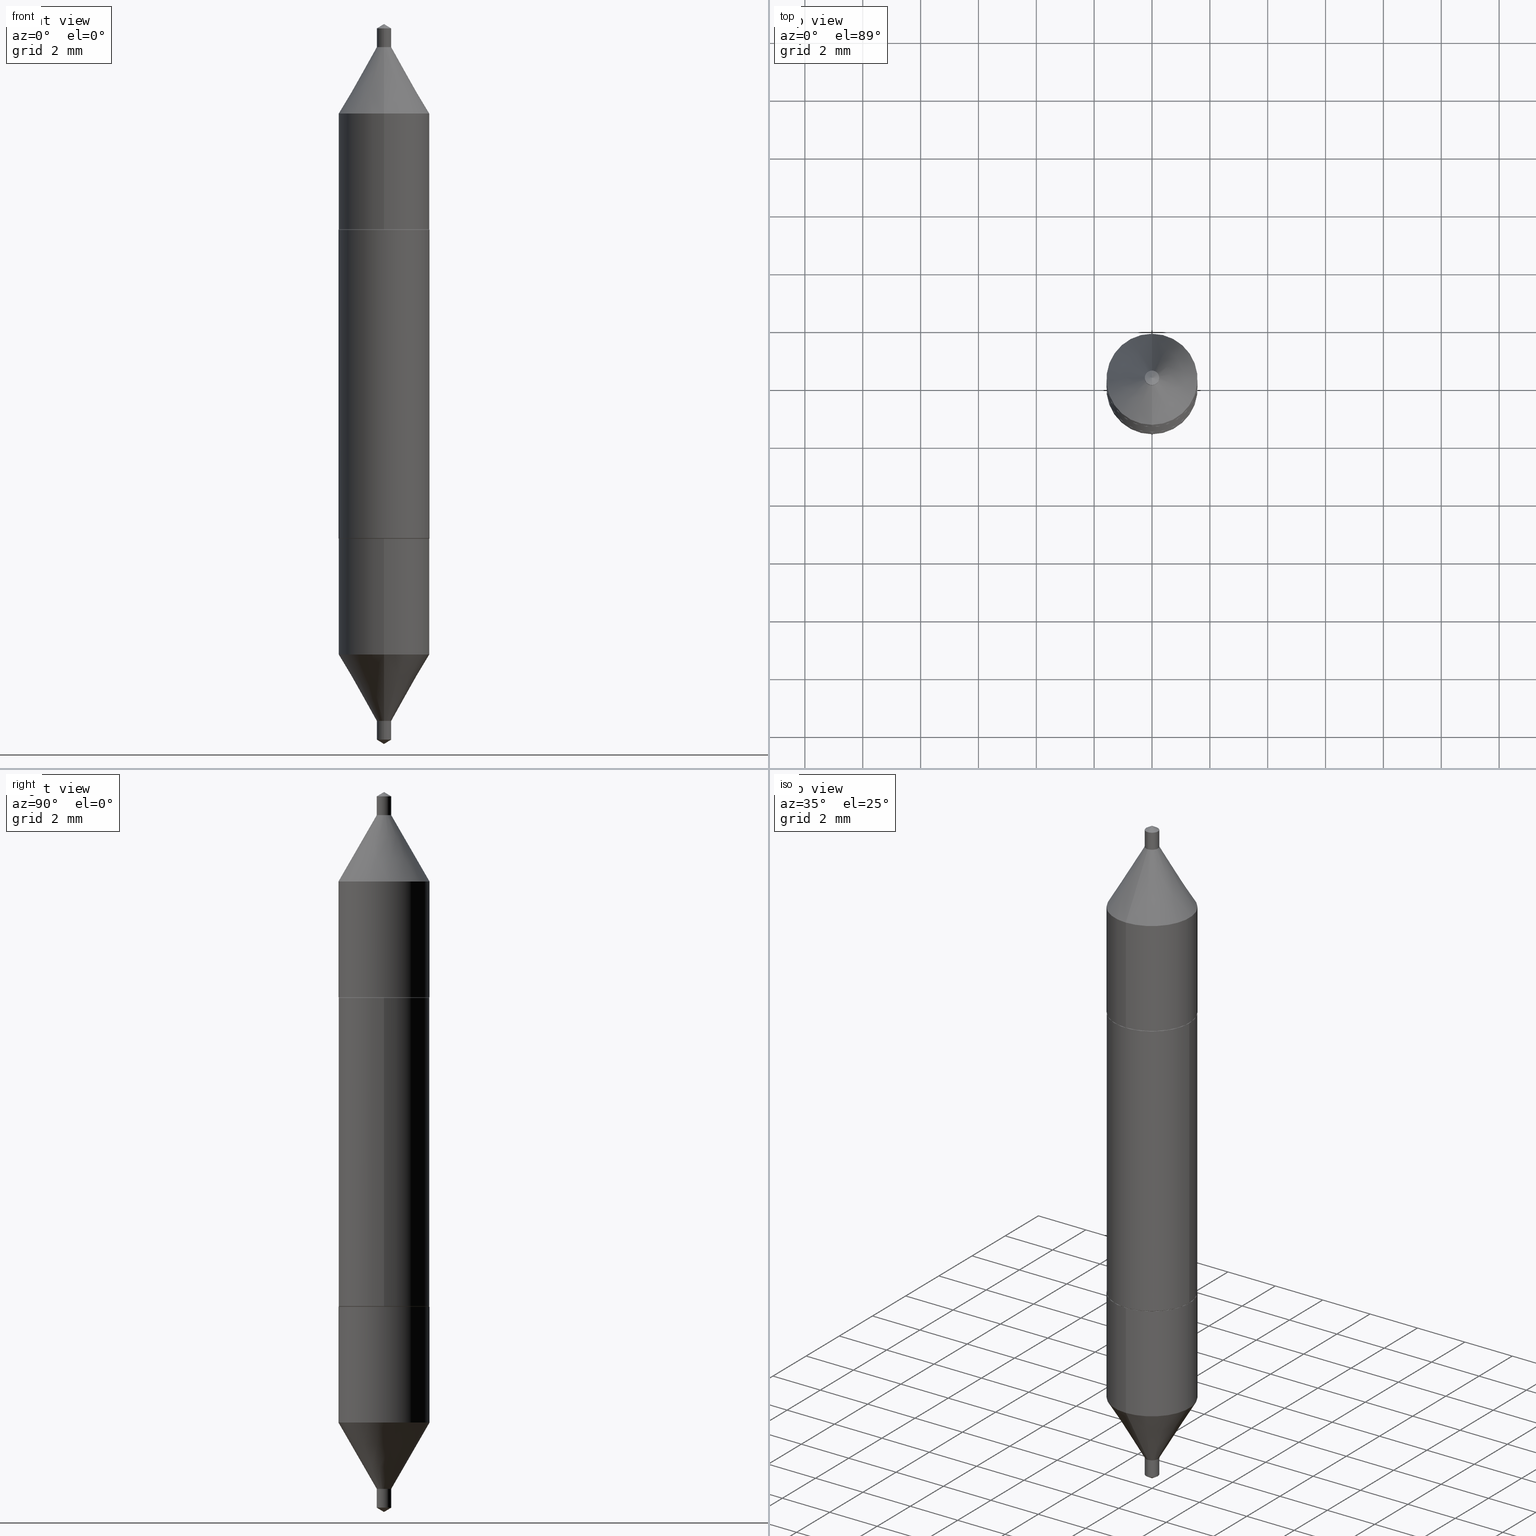
[diagram: canonical four-view strip — front | top / right | iso, engineering-drawing reading convention]
A machine part, canonical four-view strip (front | top / right | iso — engineering-drawing reading convention). The complete STEP part file that produces these views, byte-faithful:
ISO-10303-21;
HEADER;
FILE_DESCRIPTION (( 'STEP AP203' ),
    '1' );
FILE_NAME ('67035.STEP',
    '2024-04-19T15:17:56',
    ( '' ),
    ( '' ),
    'SwSTEP 2.0',
    'SolidWorks 2023',
    '' );
FILE_SCHEMA (( 'CONFIG_CONTROL_DESIGN' ));
ENDSEC;

DATA;
#1 = DIRECTION ( 'NONE',  ( -6.982962677686265922E-15, -1.000000000000000000, 3.304654831045475469E-15 ) ) ;
#2 = ORIENTED_EDGE ( 'NONE', *, *, #683, .T. ) ;
#3 = DIRECTION ( 'NONE',  ( 2.674940976805724473E-29, -3.162864129769616259E-15, -1.000000000000000000 ) ) ;
#4 = AXIS2_PLACEMENT_3D ( 'NONE', #346, #613, #310 ) ;
#5 = AXIS2_PLACEMENT_3D ( 'NONE', #605, #336, #130 ) ;
#6 = DIRECTION ( 'NONE',  ( -6.982962677686265922E-15, -1.000000000000000000, 3.304654831045477047E-15 ) ) ;
#7 = ORIENTED_EDGE ( 'NONE', *, *, #37, .T. ) ;
#8 = EDGE_CURVE ( 'NONE', #266, #449, #74, .T. ) ;
#9 = DIRECTION ( 'NONE',  ( -2.445468806185136877E-29, 3.491481338843145188E-15, 1.000000000000000000 ) ) ;
#10 = ORIENTED_EDGE ( 'NONE', *, *, #702, .F. ) ;
#11 = PERSON_AND_ORGANIZATION_ROLE ( 'design_supplier' ) ;
#12 = EDGE_LOOP ( 'NONE', ( #580, #131 ) ) ;
#13 = SHAPE_DEFINITION_REPRESENTATION ( #232, #146 ) ;
#14 = CARTESIAN_POINT ( 'NONE',  ( -5.147711837019709795E-30, 7.349568218264817959E-16, 0.2104999999999999094 ) ) ;
#15 = CONICAL_SURFACE ( 'NONE', #279, 0.06150000000000004768, 0.7853981633974482790 ) ;
#16 = VECTOR ( 'NONE', #330, 39.37007874015748854 ) ;
#17 = VERTEX_POINT ( 'NONE', #24 ) ;
#18 = DIRECTION ( 'NONE',  ( -2.445468806185136597E-29, 3.491481338843145583E-15, 1.000000000000000000 ) ) ;
#19 = ORIENTED_EDGE ( 'NONE', *, *, #172, .F. ) ;
#20 = PERSON_AND_ORGANIZATION ( #66, #689 ) ;
#21 = CARTESIAN_POINT ( 'NONE',  ( -4.331536910541446311E-30, 8.518377166773612246E-16, 0.2104999999999999094 ) ) ;
#22 = CARTESIAN_POINT ( 'NONE',  ( 1.064338349321979233E-29, -1.682341261709817367E-15, -0.4584999999999999631 ) ) ;
#23 = CARTESIAN_POINT ( 'NONE',  ( 1.064338349321979233E-29, -1.682341261709817367E-15, -0.4584999999999999631 ) ) ;
#24 = CARTESIAN_POINT ( 'NONE',  ( 4.405364961712693597E-16, 0.06199999999999874362, -0.3681735503852819336 ) ) ;
#25 = DATE_AND_TIME ( #664, #420 ) ;
#26 = CARTESIAN_POINT ( 'NONE',  ( -6.878218237520515752E-17, -0.009850000000000818171, -0.2104999999999998817 ) ) ;
#27 = CARTESIAN_POINT ( 'NONE',  ( 1.064338349321979233E-29, -1.682341261709817367E-15, -0.4584999999999999631 ) ) ;
#28 = AXIS2_PLACEMENT_3D ( 'NONE', #478, #693, #103 ) ;
#29 = CONICAL_SURFACE ( 'NONE', #102, 0.009850000000000079178, 0.5235987755982925984 ) ;
#30 = EDGE_CURVE ( 'NONE', #369, #499, #248, .T. ) ;
#31 = DIRECTION ( 'NONE',  ( -6.982962677686267499E-15, -1.000000000000000000, 6.933624349401627755E-15 ) ) ;
#32 = DIRECTION ( 'NONE',  ( -6.982962677686267499E-15, -1.000000000000000000, 0.000000000000000000 ) ) ;
#33 = LINE ( 'NONE', #301, #520 ) ;
#34 = DIRECTION ( 'NONE',  ( -2.438088387897960049E-29, 3.491481338843145188E-15, 1.000000000000000000 ) ) ;
#35 = CARTESIAN_POINT ( 'NONE',  ( 4.253508758618298876E-16, 0.06200000000000131101, 0.3681735503852815450 ) ) ;
#36 = ORIENTED_EDGE ( 'NONE', *, *, #612, .F. ) ;
#37 = EDGE_CURVE ( 'NONE', #449, #100, #57, .T. ) ;
#38 = AXIS2_PLACEMENT_3D ( 'NONE', #21, #34, #257 ) ;
#39 = CIRCLE ( 'NONE', #450, 0.009850000000000087852 ) ;
#40 = CARTESIAN_POINT ( 'NONE',  ( -5.135484492988785284E-30, 7.332110811570602923E-16, 0.2099999999999999367 ) ) ;
#41 = CIRCLE ( 'NONE', #280, 0.06200000000000001343 ) ;
#42 = ORIENTED_EDGE ( 'NONE', *, *, #675, .F. ) ;
#43 = DIRECTION ( 'NONE',  ( -6.982962677686265922E-15, -1.000000000000000000, 6.933624349401621444E-15 ) ) ;
#44 = ORIENTED_EDGE ( 'NONE', *, *, #302, .T. ) ;
#45 = EDGE_CURVE ( 'NONE', #449, #266, #615, .T. ) ;
#46 = CARTESIAN_POINT ( 'NONE',  ( -6.878218237522206873E-17, -0.009849999999998559561, 0.4584999999999999631 ) ) ;
#47 = ORIENTED_EDGE ( 'NONE', *, *, #506, .F. ) ;
#48 = DIRECTION ( 'NONE',  ( -2.215996635564548441E-29, 3.820098547916675301E-15, 1.000000000000000000 ) ) ;
#49 = AXIS2_PLACEMENT_3D ( 'NONE', #303, #619, #568 ) ;
#50 = CYLINDRICAL_SURFACE ( 'NONE', #228, 0.06200000000000004813 ) ;
#51 = EDGE_CURVE ( 'NONE', #369, #329, #512, .T. ) ;
#52 = VECTOR ( 'NONE', #456, 39.37007874015748143 ) ;
#53 = LOCAL_TIME ( 11, 17, 56.00000000000000000, #607 ) ;
#54 = DIRECTION ( 'NONE',  ( -2.215996635564548441E-29, 3.820098547916675301E-15, 1.000000000000000000 ) ) ;
#55 = DIRECTION ( 'NONE',  ( -6.982962677686265922E-15, -1.000000000000000000, 3.869117904242443885E-15 ) ) ;
#56 = CARTESIAN_POINT ( 'NONE',  ( -1.310721078634804969E-29, 1.549803423587111695E-15, 0.4899999999999999911 ) ) ;
#57 = LINE ( 'NONE', #492, #531 ) ;
#58 = ADVANCED_FACE ( 'NONE', ( #297 ), #464, .T. ) ;
#59 = VERTEX_POINT ( 'NONE', #559 ) ;
#60 = CARTESIAN_POINT ( 'NONE',  ( 0.06150000000000004768, 3.055046171487760914E-16, 0.2104999999999999094 ) ) ;
#61 = CIRCLE ( 'NONE', #428, 0.06150000000000004768 ) ;
#62 = ORIENTED_EDGE ( 'NONE', *, *, #517, .F. ) ;
#63 = APPLICATION_PROTOCOL_DEFINITION ( 'international standard', 'config_control_design', 1994, #82 ) ;
#64 = LINE ( 'NONE', #116, #643 ) ;
#65 = EDGE_CURVE ( 'NONE', #364, #59, #272, .T. ) ;
#66 = PERSON ( 'UNSPECIFIED', 'UNSPECIFIED', 'UNSPECIFIED', ('UNSPECIFIED'), ('UNSPECIFIED'), ('UNSPECIFIED') ) ;
#67 = EDGE_LOOP ( 'NONE', ( #313, #245, #119, #610 ) ) ;
#68 = CARTESIAN_POINT ( 'NONE',  ( 4.338118966400141883E-30, -8.508951288156607105E-16, -0.2104999999999999094 ) ) ;
#69 = DIRECTION ( 'NONE',  ( -5.985567269335984667E-15, -0.8571673007021165525, 0.5150380749100472721 ) ) ;
#70 = ORIENTED_EDGE ( 'NONE', *, *, #675, .T. ) ;
#71 = APPROVAL_DATE_TIME ( #25, #470 ) ;
#72 = CARTESIAN_POINT ( 'NONE',  ( 0.06200000000000001343, 3.002673951405117286E-16, 0.2099999999999999367 ) ) ;
#73 = DIRECTION ( 'NONE',  ( -1.000000000000000000, 6.982962677686265922E-15, -4.876176775795935793E-29 ) ) ;
#74 = CIRCLE ( 'NONE', #390, 0.06200000000000001343 ) ;
#75 = AXIS2_PLACEMENT_3D ( 'NONE', #254, #148, #157 ) ;
#76 = ORIENTED_EDGE ( 'NONE', *, *, #251, .T. ) ;
#77 = APPROVAL_DATE_TIME ( #617, #165 ) ;
#78 = CYLINDRICAL_SURFACE ( 'NONE', #629, 0.009850000000000084383 ) ;
#79 = DIRECTION ( 'NONE',  ( -2.215996635564548441E-29, 3.820098547916675301E-15, 1.000000000000000000 ) ) ;
#80 = CARTESIAN_POINT ( 'NONE',  ( 5.135484492988785284E-30, -7.332110811570602923E-16, -0.2099999999999999367 ) ) ;
#81 = SECURITY_CLASSIFICATION_LEVEL ( 'unclassified' ) ;
#82 = APPLICATION_CONTEXT ( 'configuration controlled 3d designs of mechanical parts and assemblies' ) ;
#83 = DIRECTION ( 'NONE',  ( -2.215996635564548441E-29, 3.820098547916675301E-15, 1.000000000000000000 ) ) ;
#84 = FACE_OUTER_BOUND ( 'NONE', #495, .T. ) ;
#85 = ADVANCED_FACE ( 'NONE', ( #309 ), #525, .T. ) ;
#86 = EDGE_CURVE ( 'NONE', #278, #128, #197, .T. ) ;
#87 = CARTESIAN_POINT ( 'NONE',  ( -5.147711837019709795E-30, 7.349568218264817959E-16, 0.2104999999999999094 ) ) ;
#88 = DIRECTION ( 'NONE',  ( -2.445468806185136597E-29, 3.491481338843145583E-15, 1.000000000000000000 ) ) ;
#89 = VECTOR ( 'NONE', #96, 39.37007874015748854 ) ;
#90 = CARTESIAN_POINT ( 'NONE',  ( 5.147711837019709795E-30, -7.349568218264817959E-16, -0.2104999999999999094 ) ) ;
#91 = CONICAL_SURFACE ( 'NONE', #602, 65.52281426577017953, 1.029744258676666302 ) ;
#92 = CARTESIAN_POINT ( 'NONE',  ( -0.06150000000000004768, 1.157719702854163501E-15, 0.2104999999999999094 ) ) ;
#93 = DIRECTION ( 'NONE',  ( -2.674940976805724473E-29, 3.162864129769616259E-15, 1.000000000000000000 ) ) ;
#94 = APPLICATION_CONTEXT ( 'configuration controlled 3d designs of mechanical parts and assemblies' ) ;
#95 = CARTESIAN_POINT ( 'NONE',  ( 1.064338349321979233E-29, -1.682341261709817367E-15, -0.4584999999999999631 ) ) ;
#96 = DIRECTION ( 'NONE',  ( -5.985567269335959423E-15, -0.8571673007021199941, -0.5150380749100412769 ) ) ;
#97 = DIRECTION ( 'NONE',  ( -6.982962677686265922E-15, -1.000000000000000000, 0.000000000000000000 ) ) ;
#98 = ORIENTED_EDGE ( 'NONE', *, *, #356, .F. ) ;
#99 = DIRECTION ( 'NONE',  ( -2.445468806185136597E-29, 3.491481338843145583E-15, 1.000000000000000000 ) ) ;
#100 = VERTEX_POINT ( 'NONE', #72 ) ;
#101 = CONICAL_SURFACE ( 'NONE', #518, 65.52281426577017953, 1.029744258676666302 ) ;
#102 = AXIS2_PLACEMENT_3D ( 'NONE', #23, #138, #463 ) ;
#103 = DIRECTION ( 'NONE',  ( 1.000000000000000000, -6.982962677686266711E-15, 4.876176775795935793E-29 ) ) ;
#104 = EDGE_CURVE ( 'NONE', #499, #59, #626, .T. ) ;
#105 = ORIENTED_EDGE ( 'NONE', *, *, #530, .T. ) ;
#106 = CARTESIAN_POINT ( 'NONE',  ( 0.000000000000000000, 0.000000000000000000, 0.000000000000000000 ) ) ;
#107 = DIRECTION ( 'NONE',  ( 6.982962677686265922E-15, 1.000000000000000000, -3.162864129769615865E-15 ) ) ;
#108 = VERTEX_POINT ( 'NONE', #409 ) ;
#109 = CARTESIAN_POINT ( 'NONE',  ( 8.641752408732728571E-30, -1.337285322698163572E-15, -0.3681735503852817115 ) ) ;
#110 = PRODUCT_DEFINITION ( 'UNKNOWN', '', #325, #484 ) ;
#111 =( NAMED_UNIT ( * ) PLANE_ANGLE_UNIT ( ) SI_UNIT ( $, .RADIAN. ) );
#112 = VECTOR ( 'NONE', #474, 39.37007874015748143 ) ;
#113 = FACE_OUTER_BOUND ( 'NONE', #185, .T. ) ;
#114 = CIRCLE ( 'NONE', #5, 0.06200000000000001343 ) ;
#115 = LOCAL_TIME ( 11, 17, 56.00000000000000000, #500 ) ;
#116 = CARTESIAN_POINT ( 'NONE',  ( 0.06150000000000004768, -1.164409026504187451E-15, -0.2104999999999999094 ) ) ;
#117 = EDGE_CURVE ( 'NONE', #452, #241, #227, .T. ) ;
#118 = DIRECTION ( 'NONE',  ( -2.215996635564548441E-29, 3.820098547916675301E-15, 1.000000000000000000 ) ) ;
#119 = ORIENTED_EDGE ( 'NONE', *, *, #373, .F. ) ;
#120 = CARTESIAN_POINT ( 'NONE',  ( -0.06150000000000004768, -2.979730393340198427E-16, -0.2104999999999999094 ) ) ;
#121 = CARTESIAN_POINT ( 'NONE',  ( -4.329436860165436333E-16, -0.06200000000000078365, -0.2104999999999996874 ) ) ;
#122 = ORIENTED_EDGE ( 'NONE', *, *, #431, .F. ) ;
#123 = CIRCLE ( 'NONE', #334, 0.009850000000000087852 ) ;
#124 = FACE_OUTER_BOUND ( 'NONE', #12, .T. ) ;
#125 = EDGE_CURVE ( 'NONE', #603, #367, #150, .T. ) ;
#126 = AXIS2_PLACEMENT_3D ( 'NONE', #400, #637, #487 ) ;
#127 = AXIS2_PLACEMENT_3D ( 'NONE', #414, #88, #614 ) ;
#128 = VERTEX_POINT ( 'NONE', #623 ) ;
#129 = APPROVAL_STATUS ( 'not_yet_approved' ) ;
#130 = DIRECTION ( 'NONE',  ( -6.982962677686265922E-15, -1.000000000000000000, 3.855430636219725194E-15 ) ) ;
#131 = ORIENTED_EDGE ( 'NONE', *, *, #702, .T. ) ;
#132 = DIRECTION ( 'NONE',  ( -2.674940976805724473E-29, 3.162864129769616259E-15, 1.000000000000000000 ) ) ;
#133 = CARTESIAN_POINT ( 'NONE',  ( -1.178156545949790995E-29, 1.519347126009346791E-15, 0.4584999999999999631 ) ) ;
#134 = ORIENTED_EDGE ( 'NONE', *, *, #264, .T. ) ;
#135 = VERTEX_POINT ( 'NONE', #202 ) ;
#136 = DIRECTION ( 'NONE',  ( -2.215996635564548441E-29, 3.820098547916675301E-15, 1.000000000000000000 ) ) ;
#137 = CARTESIAN_POINT ( 'NONE',  ( -1.310721078634804969E-29, 1.549803423587111695E-15, 0.4899999999999999911 ) ) ;
#138 = DIRECTION ( 'NONE',  ( -2.215996635564548441E-29, 3.820098547916675301E-15, 1.000000000000000000 ) ) ;
#139 = CLOSED_SHELL ( 'NONE', ( #170, #215, #366, #411, #153, #326, #85, #424 ) ) ;
#140 = ORIENTED_EDGE ( 'NONE', *, *, #633, .T. ) ;
#141 = PERSON_AND_ORGANIZATION ( #66, #689 ) ;
#142 = DIRECTION ( 'NONE',  ( 2.674940976805724473E-29, -3.162864129769616259E-15, -1.000000000000000000 ) ) ;
#143 = DIRECTION ( 'NONE',  ( -6.982962677686265922E-15, -1.000000000000000000, 3.135319681024049423E-15 ) ) ;
#144 = LINE ( 'NONE', #353, #558 ) ;
#145 = EDGE_CURVE ( 'NONE', #59, #364, #370, .T. ) ;
#146 = ADVANCED_BREP_SHAPE_REPRESENTATION ( '67035', ( #434, #657, #432, #521 ), #570 ) ;
#147 = DIRECTION ( 'NONE',  ( 1.000000000000000000, -6.982962677686265922E-15, 0.000000000000000000 ) ) ;
#148 = DIRECTION ( 'NONE',  ( -2.674940976805724473E-29, 3.162864129769616259E-15, 1.000000000000000000 ) ) ;
#149 = ORIENTED_EDGE ( 'NONE', *, *, #633, .F. ) ;
#150 = LINE ( 'NONE', #137, #89 ) ;
#151 = CARTESIAN_POINT ( 'NONE',  ( 6.757590527803834340E-17, 0.009850000000001598796, 0.4584999999999999631 ) ) ;
#152 = ORIENTED_EDGE ( 'NONE', *, *, #465, .F. ) ;
#153 = ADVANCED_FACE ( 'NONE', ( #357 ), #15, .T. ) ;
#154 = AXIS2_PLACEMENT_3D ( 'NONE', #565, #519, #681 ) ;
#155 = AXIS2_PLACEMENT_3D ( 'NONE', #90, #583, #271 ) ;
#156 = FACE_OUTER_BOUND ( 'NONE', #158, .T. ) ;
#157 = DIRECTION ( 'NONE',  ( -6.982962677686267499E-15, -1.000000000000000000, 0.000000000000000000 ) ) ;
#158 = EDGE_LOOP ( 'NONE', ( #62, #509, #343, #152 ) ) ;
#159 = LINE ( 'NONE', #269, #323 ) ;
#160 = ORIENTED_EDGE ( 'NONE', *, *, #535, .F. ) ;
#161 = EDGE_CURVE ( 'NONE', #128, #135, #204, .T. ) ;
#162 = ORIENTED_EDGE ( 'NONE', *, *, #513, .F. ) ;
#163 = ORIENTED_EDGE ( 'NONE', *, *, #482, .F. ) ;
#164 = DIRECTION ( 'NONE',  ( 0.000000000000000000, 0.000000000000000000, 1.000000000000000000 ) ) ;
#165 = APPROVAL ( #396, 'UNSPECIFIED' ) ;
#166 = LINE ( 'NONE', #121, #677 ) ;
#167 = CARTESIAN_POINT ( 'NONE',  ( 4.405364961712713319E-16, 0.06199999999999927791, -0.2105000000000001592 ) ) ;
#168 = CARTESIAN_POINT ( 'NONE',  ( 5.147711837019709795E-30, -7.349568218264817959E-16, -0.2104999999999999094 ) ) ;
#169 = ADVANCED_FACE ( 'NONE', ( #573 ), #359, .T. ) ;
#170 = ADVANCED_FACE ( 'NONE', ( #156 ), #676, .T. ) ;
#171 = AXIS2_PLACEMENT_3D ( 'NONE', #342, #132, #555 ) ;
#172 = EDGE_CURVE ( 'NONE', #534, #100, #315, .T. ) ;
#173 = CARTESIAN_POINT ( 'NONE',  ( -0.06200000000000001343, 4.405364961712622107E-16, -3.049739755958042274E-30 ) ) ;
#174 = ORIENTED_EDGE ( 'NONE', *, *, #446, .F. ) ;
#175 = ORIENTED_EDGE ( 'NONE', *, *, #522, .T. ) ;
#176 = ADVANCED_FACE ( 'NONE', ( #468 ), #101, .T. ) ;
#177 = FACE_OUTER_BOUND ( 'NONE', #453, .T. ) ;
#178 = ORIENTED_EDGE ( 'NONE', *, *, #302, .F. ) ;
#179 = APPROVAL_ROLE ( '' ) ;
#180 = AXIS2_PLACEMENT_3D ( 'NONE', #207, #556, #459 ) ;
#181 = DIRECTION ( 'NONE',  ( 2.445468806185136597E-29, -3.491481338843145583E-15, -1.000000000000000000 ) ) ;
#182 = AXIS2_PLACEMENT_3D ( 'NONE', #109, #647, #1 ) ;
#183 = CC_DESIGN_APPROVAL ( #470, ( #383 ) ) ;
#184 = CC_DESIGN_DATE_AND_TIME_ASSIGNMENT ( #497, #344, ( #383 ) ) ;
#185 = EDGE_LOOP ( 'NONE', ( #553, #188, #7, #19 ) ) ;
#186 = APPROVAL_ROLE ( '' ) ;
#187 = CARTESIAN_POINT ( 'NONE',  ( 5.963886763497973980E-30, -6.180759269756023672E-16, -0.2104999999999999094 ) ) ;
#188 = ORIENTED_EDGE ( 'NONE', *, *, #8, .T. ) ;
#189 = DIRECTION ( 'NONE',  ( 2.674940976805724473E-29, -3.162864129769616259E-15, -1.000000000000000000 ) ) ;
#190 = FACE_OUTER_BOUND ( 'NONE', #549, .T. ) ;
#191 = ORIENTED_EDGE ( 'NONE', *, *, #674, .F. ) ;
#192 = ORIENTED_EDGE ( 'NONE', *, *, #356, .T. ) ;
#193 = PERSON_AND_ORGANIZATION ( #66, #689 ) ;
#194 = EDGE_CURVE ( 'NONE', #17, #391, #448, .T. ) ;
#195 = DIRECTION ( 'NONE',  ( -2.215996635564548441E-29, 3.820098547916675301E-15, 1.000000000000000000 ) ) ;
#196 = CARTESIAN_POINT ( 'NONE',  ( 6.998845947237559548E-17, 0.009849999999999350594, -0.2104999999999999372 ) ) ;
#197 = CIRCLE ( 'NONE', #171, 0.06200000000000008282 ) ;
#198 = AXIS2_PLACEMENT_3D ( 'NONE', #685, #627, #97 ) ;
#199 = FACE_OUTER_BOUND ( 'NONE', #67, .T. ) ;
#200 = DIRECTION ( 'NONE',  ( -2.215996635564548441E-29, 3.820098547916675301E-15, 1.000000000000000000 ) ) ;
#201 = ORIENTED_EDGE ( 'NONE', *, *, #332, .T. ) ;
#202 = CARTESIAN_POINT ( 'NONE',  ( -4.329436860165537406E-16, -0.06199999999999927791, 0.2105000000000001315 ) ) ;
#203 = LINE ( 'NONE', #574, #324 ) ;
#204 = LINE ( 'NONE', #405, #404 ) ;
#205 = LINE ( 'NONE', #252, #52 ) ;
#206 = EDGE_LOOP ( 'NONE', ( #594, #259 ) ) ;
#207 = CARTESIAN_POINT ( 'NONE',  ( 5.135484492988785284E-30, -7.332110811570602923E-16, -0.2099999999999999367 ) ) ;
#208 = VECTOR ( 'NONE', #498, 39.37007874015748854 ) ;
#209 = CARTESIAN_POINT ( 'NONE',  ( 6.757590527804501174E-17, 0.009850000000000818171, 0.2104999999999998817 ) ) ;
#210 = ORIENTED_EDGE ( 'NONE', *, *, #292, .T. ) ;
#211 = ADVANCED_FACE ( 'NONE', ( #511 ), #78, .T. ) ;
#212 = PLANE ( 'NONE',  #417 ) ;
#213 = ORIENTED_EDGE ( 'NONE', *, *, #402, .F. ) ;
#214 = DIRECTION ( 'NONE',  ( 2.674940976805724473E-29, -3.162864129769615865E-15, -1.000000000000000000 ) ) ;
#215 = ADVANCED_FACE ( 'NONE', ( #199 ), #516, .T. ) ;
#216 = ORIENTED_EDGE ( 'NONE', *, *, #161, .T. ) ;
#217 = FACE_OUTER_BOUND ( 'NONE', #694, .T. ) ;
#218 = AXIS2_PLACEMENT_3D ( 'NONE', #281, #433, #651 ) ;
#219 = CIRCLE ( 'NONE', #218, 0.06200000000000008282 ) ;
#220 = CARTESIAN_POINT ( 'NONE',  ( 1.085838351426628677E-29, -1.871848288479170590E-15, -0.4899999999999999911 ) ) ;
#221 = CARTESIAN_POINT ( 'NONE',  ( 5.147711837019709795E-30, -7.349568218264817959E-16, -0.2104999999999999094 ) ) ;
#222 = CYLINDRICAL_SURFACE ( 'NONE', #28, 0.06200000000000001343 ) ;
#223 = DIRECTION ( 'NONE',  ( -6.982962677686265922E-15, -1.000000000000000000, 3.855430636219722827E-15 ) ) ;
#224 = DIRECTION ( 'NONE',  ( -2.674940976805724473E-29, 3.162864129769616259E-15, 1.000000000000000000 ) ) ;
#225 = DIRECTION ( 'NONE',  ( 1.000000000000000000, -6.982962677686265922E-15, 0.000000000000000000 ) ) ;
#226 = ORIENTED_EDGE ( 'NONE', *, *, #145, .T. ) ;
#227 = CIRCLE ( 'NONE', #661, 0.06150000000000004768 ) ;
#228 = AXIS2_PLACEMENT_3D ( 'NONE', #234, #54, #223 ) ;
#229 = DIRECTION ( 'NONE',  ( -6.982962677686267499E-15, -1.000000000000000000, 0.000000000000000000 ) ) ;
#230 = APPROVAL_PERSON_ORGANIZATION ( #621, #165, #287 ) ;
#231 = ORIENTED_EDGE ( 'NONE', *, *, #482, .T. ) ;
#232 = PRODUCT_DEFINITION_SHAPE ( 'NONE', 'NONE',  #110 ) ;
#233 = ORIENTED_EDGE ( 'NONE', *, *, #465, .T. ) ;
#234 = CARTESIAN_POINT ( 'NONE',  ( 5.147711837019709795E-30, -7.349568218264817959E-16, -0.2104999999999999094 ) ) ;
#235 = CC_DESIGN_PERSON_AND_ORGANIZATION_ASSIGNMENT ( #408, #11, ( #325 ) ) ;
#236 = VERTEX_POINT ( 'NONE', #415 ) ;
#237 = AXIS2_PLACEMENT_3D ( 'NONE', #253, #471, #631 ) ;
#238 = DIRECTION ( 'NONE',  ( 1.000000000000000000, -6.982962677686265922E-15, 0.000000000000000000 ) ) ;
#239 = CONICAL_SURFACE ( 'NONE', #291, 65.52281426577017953, 1.029744258676666302 ) ;
#240 = VECTOR ( 'NONE', #593, 39.37007874015748143 ) ;
#241 = VERTEX_POINT ( 'NONE', #92 ) ;
#242 = PERSON_AND_ORGANIZATION_ROLE ( 'creator' ) ;
#243 = CARTESIAN_POINT ( 'NONE',  ( 1.040502196953959630E-27, -1.229032324873523704E-13, -38.88007874015748655 ) ) ;
#244 = EDGE_CURVE ( 'NONE', #360, #236, #649, .T. ) ;
#245 = ORIENTED_EDGE ( 'NONE', *, *, #691, .T. ) ;
#246 = CARTESIAN_POINT ( 'NONE',  ( 5.147711837019709795E-30, -7.349568218264817959E-16, -0.2104999999999999094 ) ) ;
#247 = DIRECTION ( 'NONE',  ( 5.880594550222125423E-15, 0.8571673007021168855, -0.5150380749100467170 ) ) ;
#248 = LINE ( 'NONE', #562, #437 ) ;
#249 = DIRECTION ( 'NONE',  ( 2.674940976805724473E-29, -3.162864129769615865E-15, -1.000000000000000000 ) ) ;
#250 = DIRECTION ( 'NONE',  ( -0.7071067811865474617, 2.382254525458707609E-15, -0.7071067811865474617 ) ) ;
#251 = EDGE_CURVE ( 'NONE', #282, #135, #599, .T. ) ;
#252 = CARTESIAN_POINT ( 'NONE',  ( -6.878218237521543737E-17, -0.009849999999999350594, 0.2104999999999999372 ) ) ;
#253 = CARTESIAN_POINT ( 'NONE',  ( -5.147711837019709795E-30, 7.349568218264817959E-16, 0.2104999999999999094 ) ) ;
#254 = CARTESIAN_POINT ( 'NONE',  ( -1.178156545949790995E-29, 1.519347126009346791E-15, 0.4584999999999999631 ) ) ;
#255 = ORIENTED_EDGE ( 'NONE', *, *, #65, .F. ) ;
#256 = ADVANCED_FACE ( 'NONE', ( #363 ), #667, .T. ) ;
#257 = DIRECTION ( 'NONE',  ( -1.000000000000000000, 6.982962677686265922E-15, -4.876176775795935793E-29 ) ) ;
#258 = CARTESIAN_POINT ( 'NONE',  ( 6.998845947238172148E-17, 0.009849999999998313230, -0.4840815229025787203 ) ) ;
#259 = ORIENTED_EDGE ( 'NONE', *, *, #517, .T. ) ;
#260 = VECTOR ( 'NONE', #195, 39.37007874015748143 ) ;
#261 = CONICAL_SURFACE ( 'NONE', #316, 0.06150000000000004768, 0.7853981633974482790 ) ;
#262 = APPROVAL_PERSON_ORGANIZATION ( #299, #470, #179 ) ;
#263 = ORIENTED_EDGE ( 'NONE', *, *, #51, .F. ) ;
#264 = EDGE_CURVE ( 'NONE', #278, #282, #159, .T. ) ;
#265 = CARTESIAN_POINT ( 'NONE',  ( 1.121026918006711039E-29, -1.780065200203455341E-15, -0.4840815229025786648 ) ) ;
#266 = VERTEX_POINT ( 'NONE', #376 ) ;
#267 = UNCERTAINTY_MEASURE_WITH_UNIT (LENGTH_MEASURE( 1.000000000000000082E-05 ), #646, 'distance_accuracy_value', 'NONE');
#268 = DIMENSIONAL_EXPONENTS ( 1.000000000000000000, 0.000000000000000000, 0.000000000000000000, 0.000000000000000000, 0.000000000000000000, 0.000000000000000000, 0.000000000000000000 ) ;
#269 = CARTESIAN_POINT ( 'NONE',  ( 4.253508758618300849E-16, 0.06200000000000078365, 0.2104999999999997151 ) ) ;
#270 = ORIENTED_EDGE ( 'NONE', *, *, #674, .T. ) ;
#271 = DIRECTION ( 'NONE',  ( -6.982962677686265922E-15, -1.000000000000000000, 3.855430636219722827E-15 ) ) ;
#272 = CIRCLE ( 'NONE', #345, 0.009850000000000079178 ) ;
#273 = CONICAL_SURFACE ( 'NONE', #348, 65.52281426577017953, 1.029744258676666302 ) ;
#274 = LOCAL_TIME ( 11, 17, 56.00000000000000000, #461 ) ;
#275 = CARTESIAN_POINT ( 'NONE',  ( 6.998845947238172148E-17, 0.009849999999998398231, -0.4585000000000000187 ) ) ;
#276 = LINE ( 'NONE', #379, #601 ) ;
#277 = FACE_OUTER_BOUND ( 'NONE', #690, .T. ) ;
#278 = VERTEX_POINT ( 'NONE', #35 ) ;
#279 = AXIS2_PLACEMENT_3D ( 'NONE', #246, #462, #147 ) ;
#280 = AXIS2_PLACEMENT_3D ( 'NONE', #221, #118, #491 ) ;
#281 = CARTESIAN_POINT ( 'NONE',  ( -9.365386245860034671E-30, 1.233656838553512094E-15, 0.3681735503852817115 ) ) ;
#282 = VERTEX_POINT ( 'NONE', #372 ) ;
#283 = PERSON_AND_ORGANIZATION_ROLE ( 'classification_officer' ) ;
#284 = CC_DESIGN_PERSON_AND_ORGANIZATION_ASSIGNMENT ( #141, #341, ( #545 ) ) ;
#285 = CARTESIAN_POINT ( 'NONE',  ( 0.06150000000000004768, 3.055046171487760914E-16, 0.2104999999999999094 ) ) ;
#286 = ORIENTED_EDGE ( 'NONE', *, *, #440, .T. ) ;
#287 = APPROVAL_ROLE ( '' ) ;
#288 = LINE ( 'NONE', #447, #567 ) ;
#289 = ORIENTED_EDGE ( 'NONE', *, *, #251, .F. ) ;
#290 = PERSON_AND_ORGANIZATION ( #66, #689 ) ;
#291 = AXIS2_PLACEMENT_3D ( 'NONE', #644, #541, #442 ) ;
#292 = EDGE_CURVE ( 'NONE', #329, #499, #547, .T. ) ;
#293 = ORIENTED_EDGE ( 'NONE', *, *, #125, .F. ) ;
#294 = CALENDAR_DATE ( 2024, 19, 4 ) ;
#295 = DIRECTION ( 'NONE',  ( -6.982962677686267499E-15, -1.000000000000000000, 6.933624349401627755E-15 ) ) ;
#296 = DIRECTION ( 'NONE',  ( 2.674940976805724473E-29, -3.162864129769616259E-15, -1.000000000000000000 ) ) ;
#297 = FACE_OUTER_BOUND ( 'NONE', #473, .T. ) ;
#298 = DIRECTION ( 'NONE',  ( -2.445468806185136597E-29, 3.491481338843145583E-15, 1.000000000000000000 ) ) ;
#299 = PERSON_AND_ORGANIZATION ( #66, #689 ) ;
#300 = DIRECTION ( 'NONE',  ( -6.982962677686265133E-15, -1.000000000000000000, 3.466812174700811905E-15 ) ) ;
#301 = CARTESIAN_POINT ( 'NONE',  ( -1.214960431031400455E-29, 1.688151268607067473E-15, 0.4899999999999999911 ) ) ;
#302 = EDGE_CURVE ( 'NONE', #499, #329, #123, .T. ) ;
#303 = CARTESIAN_POINT ( 'NONE',  ( -5.147711837019709795E-30, 7.349568218264817959E-16, 0.2104999999999999094 ) ) ;
#304 = CONICAL_SURFACE ( 'NONE', #695, 0.06150000000000004768, 0.7853981633974482790 ) ;
#305 = CIRCLE ( 'NONE', #548, 0.06150000000000004768 ) ;
#306 = CC_DESIGN_PERSON_AND_ORGANIZATION_ASSIGNMENT ( #20, #283, ( #383 ) ) ;
#307 = CARTESIAN_POINT ( 'NONE',  ( -1.178156545949790995E-29, 1.519347126009346791E-15, 0.4584999999999999631 ) ) ;
#308 = CARTESIAN_POINT ( 'NONE',  ( -4.329436860165434361E-16, -0.06200000000000074896, -0.2104999999999996874 ) ) ;
#309 = FACE_OUTER_BOUND ( 'NONE', #206, .T. ) ;
#310 = DIRECTION ( 'NONE',  ( 1.000000000000000000, -6.982962677686266711E-15, 0.000000000000000000 ) ) ;
#311 = VERTEX_POINT ( 'NONE', #533 ) ;
#312 = DIRECTION ( 'NONE',  ( 1.000000000000000000, -6.982962677686265922E-15, 0.000000000000000000 ) ) ;
#313 = ORIENTED_EDGE ( 'NONE', *, *, #45, .T. ) ;
#314 = ADVANCED_FACE ( 'NONE', ( #591 ), #212, .F. ) ;
#315 = CIRCLE ( 'NONE', #4, 0.06200000000000001343 ) ;
#316 = AXIS2_PLACEMENT_3D ( 'NONE', #14, #181, #238 ) ;
#317 = APPROVAL_PERSON_ORGANIZATION ( #290, #600, #186 ) ;
#318 = ORIENTED_EDGE ( 'NONE', *, *, #513, .T. ) ;
#319 = FACE_OUTER_BOUND ( 'NONE', #609, .T. ) ;
#320 = ORIENTED_EDGE ( 'NONE', *, *, #264, .F. ) ;
#321 = LINE ( 'NONE', #173, #240 ) ;
#322 = LINE ( 'NONE', #209, #112 ) ;
#323 = VECTOR ( 'NONE', #214, 39.37007874015748143 ) ;
#324 = VECTOR ( 'NONE', #250, 39.37007874015748854 ) ;
#325 = PRODUCT_DEFINITION_FORMATION_WITH_SPECIFIED_SOURCE ( 'ANY', '', #545, .NOT_KNOWN. ) ;
#326 = ADVANCED_FACE ( 'NONE', ( #113 ), #222, .T. ) ;
#327 = CARTESIAN_POINT ( 'NONE',  ( 0.06200000000000001343, -1.166154767173608757E-15, -0.2099999999999999367 ) ) ;
#328 = DIRECTION ( 'NONE',  ( -2.445468806185136597E-29, 3.491481338843145583E-15, 1.000000000000000000 ) ) ;
#329 = VERTEX_POINT ( 'NONE', #258 ) ;
#330 = DIRECTION ( 'NONE',  ( -0.7071067811865474617, 7.493145998870352582E-15, 0.7071067811865474617 ) ) ;
#331 = CYLINDRICAL_SURFACE ( 'NONE', #697, 0.06200000000000004813 ) ;
#332 = EDGE_CURVE ( 'NONE', #528, #236, #322, .T. ) ;
#333 = EDGE_LOOP ( 'NONE', ( #665, #210, #658, #255 ) ) ;
#334 = AXIS2_PLACEMENT_3D ( 'NONE', #265, #588, #425 ) ;
#335 = AXIS2_PLACEMENT_3D ( 'NONE', #338, #224, #435 ) ;
#336 = DIRECTION ( 'NONE',  ( -2.215996635564548441E-29, 3.820098547916675301E-15, 1.000000000000000000 ) ) ;
#337 = ORIENTED_EDGE ( 'NONE', *, *, #30, .F. ) ;
#338 = CARTESIAN_POINT ( 'NONE',  ( -5.147711837019709795E-30, 7.349568218264817959E-16, 0.2104999999999999094 ) ) ;
#339 = ADVANCED_FACE ( 'NONE', ( #319 ), #640, .T. ) ;
#340 = ORIENTED_EDGE ( 'NONE', *, *, #373, .T. ) ;
#341 = PERSON_AND_ORGANIZATION_ROLE ( 'design_owner' ) ;
#342 = CARTESIAN_POINT ( 'NONE',  ( -9.365386245860034671E-30, 1.233656838553512094E-15, 0.3681735503852817115 ) ) ;
#343 = ORIENTED_EDGE ( 'NONE', *, *, #172, .T. ) ;
#344 = DATE_TIME_ROLE ( 'classification_date' ) ;
#345 = AXIS2_PLACEMENT_3D ( 'NONE', #95, #136, #295 ) ;
#346 = CARTESIAN_POINT ( 'NONE',  ( -5.135484492988785284E-30, 7.332110811570602923E-16, 0.2099999999999999367 ) ) ;
#347 = CARTESIAN_POINT ( 'NONE',  ( 6.757590527803773943E-17, 0.009850000000001690736, 0.4840815229025786648 ) ) ;
#348 = AXIS2_PLACEMENT_3D ( 'NONE', #524, #406, #679 ) ;
#349 = DIRECTION ( 'NONE',  ( 6.090539988449824189E-15, 0.8571673007021203272, 0.5150380749100407218 ) ) ;
#350 = ORIENTED_EDGE ( 'NONE', *, *, #244, .F. ) ;
#351 = CALENDAR_DATE ( 2024, 19, 4 ) ;
#352 = DIRECTION ( 'NONE',  ( -2.215996635564548441E-29, 3.820098547916675301E-15, 1.000000000000000000 ) ) ;
#353 = CARTESIAN_POINT ( 'NONE',  ( -6.878218237519963550E-17, -0.009850000000001761860, -0.4584999999999999076 ) ) ;
#354 = DIRECTION ( 'NONE',  ( -6.982962677686265922E-15, -1.000000000000000000, 3.304654831045475469E-15 ) ) ;
#355 = ORIENTED_EDGE ( 'NONE', *, *, #104, .F. ) ;
#356 = EDGE_CURVE ( 'NONE', #360, #128, #634, .T. ) ;
#357 = FACE_OUTER_BOUND ( 'NONE', #642, .T. ) ;
#358 = LINE ( 'NONE', #196, #407 ) ;
#359 = CONICAL_SURFACE ( 'NONE', #687, 0.009850000000000079178, 0.5235987755982925984 ) ;
#360 = VERTEX_POINT ( 'NONE', #481 ) ;
#361 = CONICAL_SURFACE ( 'NONE', #382, 0.009850000000000079178, 0.5235987755982925984 ) ;
#362 = CC_DESIGN_SECURITY_CLASSIFICATION ( #383, ( #325 ) ) ;
#363 = FACE_OUTER_BOUND ( 'NONE', #333, .T. ) ;
#364 = VERTEX_POINT ( 'NONE', #275 ) ;
#365 = DIRECTION ( 'NONE',  ( -3.491481338843071430E-15, -0.4999999999999972800, -0.8660254037844402619 ) ) ;
#366 = ADVANCED_FACE ( 'NONE', ( #696 ), #304, .T. ) ;
#367 = VERTEX_POINT ( 'NONE', #529 ) ;
#368 =( NAMED_UNIT ( * ) SI_UNIT ( $, .STERADIAN. ) SOLID_ANGLE_UNIT ( ) );
#369 = VERTEX_POINT ( 'NONE', #220 ) ;
#370 = CIRCLE ( 'NONE', #427, 0.009850000000000079178 ) ;
#371 = CONICAL_SURFACE ( 'NONE', #505, 0.009850000000000079178, 0.5235987755982925984 ) ;
#372 = CARTESIAN_POINT ( 'NONE',  ( 4.253508758618278662E-16, 0.06200000000000074896, 0.2104999999999997151 ) ) ;
#373 = EDGE_CURVE ( 'NONE', #100, #534, #641, .T. ) ;
#374 = VERTEX_POINT ( 'NONE', #167 ) ;
#375 = DIRECTION ( 'NONE',  ( -6.982962677686265133E-15, -1.000000000000000000, 3.466812174700811905E-15 ) ) ;
#376 = CARTESIAN_POINT ( 'NONE',  ( -0.06200000000000001343, -2.926745849857981309E-16, -0.2099999999999999367 ) ) ;
#377 = CC_DESIGN_PERSON_AND_ORGANIZATION_ASSIGNMENT ( #193, #399, ( #325 ) ) ;
#378 = DIRECTION ( 'NONE',  ( -2.215996635564548441E-29, 3.820098547916675301E-15, 1.000000000000000000 ) ) ;
#379 = CARTESIAN_POINT ( 'NONE',  ( 4.405364961712675355E-16, 0.06199999999999931261, -0.2105000000000001592 ) ) ;
#380 = ADVANCED_FACE ( 'NONE', ( #539 ), #50, .T. ) ;
#381 = AXIS2_PLACEMENT_3D ( 'NONE', #527, #378, #43 ) ;
#382 = AXIS2_PLACEMENT_3D ( 'NONE', #133, #3, #229 ) ;
#383 = SECURITY_CLASSIFICATION ( '', '', #81 ) ;
#384 = FACE_OUTER_BOUND ( 'NONE', #532, .T. ) ;
#385 = EDGE_LOOP ( 'NONE', ( #140, #418, #504, #422 ) ) ;
#386 = LINE ( 'NONE', #120, #16 ) ;
#387 = ADVANCED_FACE ( 'NONE', ( #177 ), #361, .T. ) ;
#388 = EDGE_LOOP ( 'NONE', ( #163, #318, #557, #98 ) ) ;
#389 = PLANE ( 'NONE',  #540 ) ;
#390 = AXIS2_PLACEMENT_3D ( 'NONE', #80, #298, #514 ) ;
#391 = VERTEX_POINT ( 'NONE', #655 ) ;
#392 = COORDINATED_UNIVERSAL_TIME_OFFSET ( 5, 0, .BEHIND. ) ;
#393 = DIRECTION ( 'NONE',  ( 2.438088387897960049E-29, -3.491481338843145188E-15, -1.000000000000000000 ) ) ;
#394 = ADVANCED_FACE ( 'NONE', ( #124 ), #389, .F. ) ;
#395 = ORIENTED_EDGE ( 'NONE', *, *, #145, .F. ) ;
#396 = APPROVAL_STATUS ( 'not_yet_approved' ) ;
#397 = EDGE_LOOP ( 'NONE', ( #44, #105, #395, #355 ) ) ;
#398 = ORIENTED_EDGE ( 'NONE', *, *, #561, .F. ) ;
#399 = PERSON_AND_ORGANIZATION_ROLE ( 'creator' ) ;
#400 = CARTESIAN_POINT ( 'NONE',  ( 5.147711837019709795E-30, -7.349568218264817959E-16, -0.2104999999999999094 ) ) ;
#401 = ORIENTED_EDGE ( 'NONE', *, *, #683, .F. ) ;
#402 = EDGE_CURVE ( 'NONE', #364, #17, #288, .T. ) ;
#403 = ORIENTED_EDGE ( 'NONE', *, *, #535, .T. ) ;
#404 = VECTOR ( 'NONE', #249, 39.37007874015748143 ) ;
#405 = CARTESIAN_POINT ( 'NONE',  ( -4.329436860165539871E-16, -0.06199999999999931261, 0.2105000000000001315 ) ) ;
#406 = DIRECTION ( 'NONE',  ( 2.674940976805724473E-29, -3.162864129769616259E-15, -1.000000000000000000 ) ) ;
#407 = VECTOR ( 'NONE', #79, 39.37007874015748143 ) ;
#408 = PERSON_AND_ORGANIZATION ( #66, #689 ) ;
#409 = CARTESIAN_POINT ( 'NONE',  ( -0.06150000000000004768, -2.953238121599089868E-16, -0.2104999999999999094 ) ) ;
#410 = LINE ( 'NONE', #151, #438 ) ;
#411 = ADVANCED_FACE ( 'NONE', ( #441 ), #598, .T. ) ;
#412 = CLOSED_SHELL ( 'NONE', ( #589, #638, #595, #380, #590, #394, #656, #256, #552 ) ) ;
#413 = DIRECTION ( 'NONE',  ( 1.000000000000000000, -6.982962677686265922E-15, 0.000000000000000000 ) ) ;
#414 = CARTESIAN_POINT ( 'NONE',  ( -5.147711837019709795E-30, 7.349568218264817959E-16, 0.2104999999999999094 ) ) ;
#415 = CARTESIAN_POINT ( 'NONE',  ( 6.757590527803801060E-17, 0.009850000000001598796, 0.4584999999999999631 ) ) ;
#416 = CARTESIAN_POINT ( 'NONE',  ( -6.878218237519914246E-17, -0.009850000000001871148, -0.4840815229025785538 ) ) ;
#417 = AXIS2_PLACEMENT_3D ( 'NONE', #579, #536, #107 ) ;
#418 = ORIENTED_EDGE ( 'NONE', *, *, #458, .T. ) ;
#419 = AXIS2_PLACEMENT_3D ( 'NONE', #40, #430, #645 ) ;
#420 = LOCAL_TIME ( 11, 17, 56.00000000000000000, #515 ) ;
#421 = DIRECTION ( 'NONE',  ( -6.982962677686265922E-15, -1.000000000000000000, 3.304654831045477047E-15 ) ) ;
#422 = ORIENTED_EDGE ( 'NONE', *, *, #440, .F. ) ;
#423 = ORIENTED_EDGE ( 'NONE', *, *, #161, .F. ) ;
#424 = ADVANCED_FACE ( 'NONE', ( #501 ), #261, .T. ) ;
#425 = DIRECTION ( 'NONE',  ( -6.982962677686265922E-15, -1.000000000000000000, 6.933624349401621444E-15 ) ) ;
#426 = EDGE_LOOP ( 'NONE', ( #42, #606, #551, #10 ) ) ;
#427 = AXIS2_PLACEMENT_3D ( 'NONE', #22, #83, #31 ) ;
#428 = AXIS2_PLACEMENT_3D ( 'NONE', #587, #328, #225 ) ;
#429 = CC_DESIGN_APPROVAL ( #600, ( #325 ) ) ;
#430 = DIRECTION ( 'NONE',  ( -2.445468806185136597E-29, 3.491481338843145583E-15, 1.000000000000000000 ) ) ;
#431 = EDGE_CURVE ( 'NONE', #577, #374, #114, .T. ) ;
#432 = MANIFOLD_SOLID_BREP ( 'Body-Move/Copy2[3]', #139 ) ;
#433 = DIRECTION ( 'NONE',  ( -2.674940976805724473E-29, 3.162864129769616259E-15, 1.000000000000000000 ) ) ;
#434 = MANIFOLD_SOLID_BREP ( 'Body-Move/Copy2[1]', #412 ) ;
#435 = DIRECTION ( 'NONE',  ( -6.982962677686265922E-15, -1.000000000000000000, 3.304654831045479019E-15 ) ) ;
#436 = DIRECTION ( 'NONE',  ( 2.674940976805724473E-29, -3.162864129769616259E-15, -1.000000000000000000 ) ) ;
#437 = VECTOR ( 'NONE', #69, 39.37007874015748143 ) ;
#438 = VECTOR ( 'NONE', #624, 39.37007874015748143 ) ;
#439 = ORIENTED_EDGE ( 'NONE', *, *, #65, .T. ) ;
#440 = EDGE_CURVE ( 'NONE', #311, #449, #64, .T. ) ;
#441 = FACE_OUTER_BOUND ( 'NONE', #480, .T. ) ;
#442 = DIRECTION ( 'NONE',  ( -6.982962677686265922E-15, -1.000000000000000000, 3.869117904242443885E-15 ) ) ;
#443 = ORIENTED_EDGE ( 'NONE', *, *, #332, .F. ) ;
#444 = ORIENTED_EDGE ( 'NONE', *, *, #125, .T. ) ;
#445 = DATE_AND_TIME ( #351, #507 ) ;
#446 = EDGE_CURVE ( 'NONE', #135, #282, #581, .T. ) ;
#447 = CARTESIAN_POINT ( 'NONE',  ( 6.998845947238106820E-17, 0.009849999999998398231, -0.4585000000000000187 ) ) ;
#448 = CIRCLE ( 'NONE', #493, 0.06200000000000008282 ) ;
#449 = VERTEX_POINT ( 'NONE', #327 ) ;
#450 = AXIS2_PLACEMENT_3D ( 'NONE', #569, #93, #668 ) ;
#451 = DIRECTION ( 'NONE',  ( 0.7071067811865474617, -2.468850131082256666E-15, 0.7071067811865474617 ) ) ;
#452 = VERTEX_POINT ( 'NONE', #60 ) ;
#453 = EDGE_LOOP ( 'NONE', ( #162, #350, #192, #270 ) ) ;
#454 = CALENDAR_DATE ( 2024, 19, 4 ) ;
#455 = CARTESIAN_POINT ( 'NONE',  ( -1.178156545949790995E-29, 1.519347126009346791E-15, 0.4584999999999999631 ) ) ;
#456 = DIRECTION ( 'NONE',  ( 2.674940976805724473E-29, -3.162864129769615865E-15, -1.000000000000000000 ) ) ;
#457 = ORIENTED_EDGE ( 'NONE', *, *, #292, .F. ) ;
#458 = EDGE_CURVE ( 'NONE', #108, #266, #386, .T. ) ;
#459 = DIRECTION ( 'NONE',  ( 1.000000000000000000, -6.982962677686265133E-15, 0.000000000000000000 ) ) ;
#460 = EDGE_LOOP ( 'NONE', ( #47, #635, #233, #340 ) ) ;
#461 = COORDINATED_UNIVERSAL_TIME_OFFSET ( 5, 0, .BEHIND. ) ;
#462 = DIRECTION ( 'NONE',  ( -2.445468806185136597E-29, 3.491481338843145583E-15, 1.000000000000000000 ) ) ;
#463 = DIRECTION ( 'NONE',  ( -6.982962677686267499E-15, -1.000000000000000000, 6.933624349401627755E-15 ) ) ;
#464 = CYLINDRICAL_SURFACE ( 'NONE', #566, 0.009850000000000084383 ) ;
#465 = EDGE_CURVE ( 'NONE', #452, #100, #544, .T. ) ;
#466 = AXIS2_PLACEMENT_3D ( 'NONE', #307, #523, #32 ) ;
#467 = CARTESIAN_POINT ( 'NONE',  ( 8.641752408732728571E-30, -1.337285322698163572E-15, -0.3681735503852817115 ) ) ;
#468 = FACE_OUTER_BOUND ( 'NONE', #654, .T. ) ;
#469 = DIRECTION ( 'NONE',  ( -6.982962677686267499E-15, -1.000000000000000000, 6.933624349401627755E-15 ) ) ;
#470 = APPROVAL ( #611, 'UNSPECIFIED' ) ;
#471 = DIRECTION ( 'NONE',  ( -2.674940976805724473E-29, 3.162864129769616259E-15, 1.000000000000000000 ) ) ;
#472 = CARTESIAN_POINT ( 'NONE',  ( 5.147711837019709795E-30, -7.349568218264817959E-16, -0.2104999999999999094 ) ) ;
#473 = EDGE_LOOP ( 'NONE', ( #692, #201, #231, #575 ) ) ;
#474 = DIRECTION ( 'NONE',  ( 2.674940976805724473E-29, -3.162864129769615865E-15, -1.000000000000000000 ) ) ;
#475 = AXIS2_PLACEMENT_3D ( 'NONE', #688, #699, #421 ) ;
#476 = EDGE_LOOP ( 'NONE', ( #443, #160, #639, #537 ) ) ;
#477 = CIRCLE ( 'NONE', #198, 0.009850000000000087852 ) ;
#478 = CARTESIAN_POINT ( 'NONE',  ( 0.000000000000000000, 0.000000000000000000, 0.000000000000000000 ) ) ;
#479 = ORIENTED_EDGE ( 'NONE', *, *, #561, .T. ) ;
#480 = EDGE_LOOP ( 'NONE', ( #149, #652 ) ) ;
#481 = CARTESIAN_POINT ( 'NONE',  ( -6.878218237522206873E-17, -0.009849999999998559561, 0.4584999999999999631 ) ) ;
#482 = EDGE_CURVE ( 'NONE', #236, #360, #650, .T. ) ;
#483 = ORIENTED_EDGE ( 'NONE', *, *, #490, .T. ) ;
#484 = DESIGN_CONTEXT ( 'detailed design', #82, 'design' ) ;
#485 = CIRCLE ( 'NONE', #182, 0.06200000000000008282 ) ;
#486 = DIRECTION ( 'NONE',  ( -2.215996635564548441E-29, 3.820098547916675301E-15, 1.000000000000000000 ) ) ;
#487 = DIRECTION ( 'NONE',  ( -6.982962677686265133E-15, -1.000000000000000000, 3.466812174700811905E-15 ) ) ;
#488 = EDGE_CURVE ( 'NONE', #367, #360, #205, .T. ) ;
#489 = DIRECTION ( 'NONE',  ( -2.215996635564548441E-29, 3.820098547916675301E-15, 1.000000000000000000 ) ) ;
#490 = EDGE_CURVE ( 'NONE', #108, #311, #305, .T. ) ;
#491 = DIRECTION ( 'NONE',  ( -6.982962677686265922E-15, -1.000000000000000000, 3.855430636219725194E-15 ) ) ;
#492 = CARTESIAN_POINT ( 'NONE',  ( 0.06200000000000001343, -4.329436860165486130E-16, 3.023229600993481018E-30 ) ) ;
#493 = AXIS2_PLACEMENT_3D ( 'NONE', #467, #352, #354 ) ;
#494 = AXIS2_PLACEMENT_3D ( 'NONE', #187, #393, #73 ) ;
#495 = EDGE_LOOP ( 'NONE', ( #226, #616, #401, #670 ) ) ;
#496 = EDGE_LOOP ( 'NONE', ( #2, #70, #122, #36 ) ) ;
#497 = DATE_AND_TIME ( #294, #53 ) ;
#498 = DIRECTION ( 'NONE',  ( 0.7071067811865474617, -7.406550393246804314E-15, -0.7071067811865474617 ) ) ;
#499 = VERTEX_POINT ( 'NONE', #416 ) ;
#500 = COORDINATED_UNIVERSAL_TIME_OFFSET ( 5, 0, .BEHIND. ) ;
#501 = FACE_OUTER_BOUND ( 'NONE', #460, .T. ) ;
#502 = CC_DESIGN_DATE_AND_TIME_ASSIGNMENT ( #445, #671, ( #110 ) ) ;
#503 = VECTOR ( 'NONE', #365, 39.37007874015748143 ) ;
#504 = ORIENTED_EDGE ( 'NONE', *, *, #45, .F. ) ;
#505 = AXIS2_PLACEMENT_3D ( 'NONE', #27, #200, #469 ) ;
#506 = EDGE_CURVE ( 'NONE', #241, #534, #203, .T. ) ;
#507 = LOCAL_TIME ( 11, 17, 56.00000000000000000, #392 ) ;
#508 = CARTESIAN_POINT ( 'NONE',  ( -0.06200000000000001343, 4.405364961712622107E-16, 0.2099999999999999367 ) ) ;
#509 = ORIENTED_EDGE ( 'NONE', *, *, #506, .T. ) ;
#510 = CARTESIAN_POINT ( 'NONE',  ( -5.147711837019709795E-30, 7.349568218264817959E-16, 0.2104999999999999094 ) ) ;
#511 = FACE_OUTER_BOUND ( 'NONE', #476, .T. ) ;
#512 = LINE ( 'NONE', #669, #592 ) ;
#513 = EDGE_CURVE ( 'NONE', #236, #278, #410, .T. ) ;
#514 = DIRECTION ( 'NONE',  ( 1.000000000000000000, -6.982962677686265133E-15, 0.000000000000000000 ) ) ;
#515 = COORDINATED_UNIVERSAL_TIME_OFFSET ( 5, 0, .BEHIND. ) ;
#516 = CYLINDRICAL_SURFACE ( 'NONE', #154, 0.06200000000000001343 ) ;
#517 = EDGE_CURVE ( 'NONE', #241, #452, #630, .T. ) ;
#518 = AXIS2_PLACEMENT_3D ( 'NONE', #243, #189, #143 ) ;
#519 = DIRECTION ( 'NONE',  ( -2.445468806185136597E-29, 3.491481338843145583E-15, 1.000000000000000000 ) ) ;
#520 = VECTOR ( 'NONE', #247, 39.37007874015748143 ) ;
#521 = AXIS2_PLACEMENT_3D ( 'NONE', #106, #164, #586 ) ;
#522 = EDGE_CURVE ( 'NONE', #528, #367, #477, .T. ) ;
#523 = DIRECTION ( 'NONE',  ( -2.674940976805724473E-29, 3.162864129769616259E-15, 1.000000000000000000 ) ) ;
#524 = CARTESIAN_POINT ( 'NONE',  ( 1.040502196953959630E-27, -1.229032324873523704E-13, -38.88007874015748655 ) ) ;
#525 = PLANE ( 'NONE',  #38 ) ;
#526 = CYLINDRICAL_SURFACE ( 'NONE', #155, 0.06200000000000004813 ) ;
#527 = CARTESIAN_POINT ( 'NONE',  ( 1.121026918006711039E-29, -1.780065200203455341E-15, -0.4840815229025786648 ) ) ;
#528 = VERTEX_POINT ( 'NONE', #347 ) ;
#529 = CARTESIAN_POINT ( 'NONE',  ( -6.878218237522282061E-17, -0.009849999999998491906, 0.4840815229025786648 ) ) ;
#530 = EDGE_CURVE ( 'NONE', #329, #364, #358, .T. ) ;
#531 = VECTOR ( 'NONE', #9, 39.37007874015748143 ) ;
#532 = EDGE_LOOP ( 'NONE', ( #337, #571, #178 ) ) ;
#533 = CARTESIAN_POINT ( 'NONE',  ( 0.06150000000000004768, -1.164409026504187451E-15, -0.2104999999999999094 ) ) ;
#534 = VERTEX_POINT ( 'NONE', #508 ) ;
#535 = EDGE_CURVE ( 'NONE', #367, #528, #39, .T. ) ;
#536 = DIRECTION ( 'NONE',  ( -2.674940976805724473E-29, 3.162864129769615865E-15, 1.000000000000000000 ) ) ;
#537 = ORIENTED_EDGE ( 'NONE', *, *, #244, .T. ) ;
#538 =( LENGTH_UNIT ( ) NAMED_UNIT ( * ) SI_UNIT ( $, .METRE. ) );
#539 = FACE_OUTER_BOUND ( 'NONE', #496, .T. ) ;
#540 = AXIS2_PLACEMENT_3D ( 'NONE', #68, #648, #701 ) ;
#541 = DIRECTION ( 'NONE',  ( -2.215996635564548441E-29, 3.820098547916675301E-15, 1.000000000000000000 ) ) ;
#542 = FACE_OUTER_BOUND ( 'NONE', #397, .T. ) ;
#543 = ORIENTED_EDGE ( 'NONE', *, *, #584, .T. ) ;
#544 = LINE ( 'NONE', #285, #208 ) ;
#545 = PRODUCT ( '67035', '67035', '', ( #554 ) ) ;
#546 = DIRECTION ( 'NONE',  ( -2.215996635564548441E-29, 3.820098547916675301E-15, 1.000000000000000000 ) ) ;
#547 = CIRCLE ( 'NONE', #381, 0.009850000000000087852 ) ;
#548 = AXIS2_PLACEMENT_3D ( 'NONE', #472, #18, #620 ) ;
#549 = EDGE_LOOP ( 'NONE', ( #213, #439, #543, #597 ) ) ;
#550 = CLOSED_SHELL ( 'NONE', ( #169, #58, #176, #608, #339, #314, #582, #211, #387 ) ) ;
#551 = ORIENTED_EDGE ( 'NONE', *, *, #612, .T. ) ;
#552 = ADVANCED_FACE ( 'NONE', ( #190 ), #29, .T. ) ;
#553 = ORIENTED_EDGE ( 'NONE', *, *, #691, .F. ) ;
#554 = MECHANICAL_CONTEXT ( 'NONE', #94, 'mechanical' ) ;
#555 = DIRECTION ( 'NONE',  ( -6.982962677686265922E-15, -1.000000000000000000, 3.304654831045475469E-15 ) ) ;
#556 = DIRECTION ( 'NONE',  ( -2.445468806185136597E-29, 3.491481338843145583E-15, 1.000000000000000000 ) ) ;
#557 = ORIENTED_EDGE ( 'NONE', *, *, #86, .T. ) ;
#558 = VECTOR ( 'NONE', #564, 39.37007874015748143 ) ;
#559 = CARTESIAN_POINT ( 'NONE',  ( -6.878218237519963550E-17, -0.009850000000001761860, -0.4584999999999999076 ) ) ;
#560 = DIRECTION ( 'NONE',  ( -6.982962677686267499E-15, -1.000000000000000000, 0.000000000000000000 ) ) ;
#561 = EDGE_CURVE ( 'NONE', #603, #528, #33, .T. ) ;
#562 = CARTESIAN_POINT ( 'NONE',  ( 1.085838351426628677E-29, -1.871848288479170590E-15, -0.4899999999999999911 ) ) ;
#563 = APPROVAL_DATE_TIME ( #659, #600 ) ;
#564 = DIRECTION ( 'NONE',  ( -3.491481338843114423E-15, -0.4999999999999912292, 0.8660254037844437036 ) ) ;
#565 = CARTESIAN_POINT ( 'NONE',  ( 0.000000000000000000, 0.000000000000000000, 0.000000000000000000 ) ) ;
#566 = AXIS2_PLACEMENT_3D ( 'NONE', #510, #142, #572 ) ;
#567 = VECTOR ( 'NONE', #660, 39.37007874015748143 ) ;
#568 = DIRECTION ( 'NONE',  ( 1.000000000000000000, -6.982962677686265922E-15, 0.000000000000000000 ) ) ;
#569 = CARTESIAN_POINT ( 'NONE',  ( -1.246585609810992619E-29, 1.600258007182792974E-15, 0.4840815229025786648 ) ) ;
#570 =( GEOMETRIC_REPRESENTATION_CONTEXT ( 3 ) GLOBAL_UNCERTAINTY_ASSIGNED_CONTEXT ( ( #267 ) ) GLOBAL_UNIT_ASSIGNED_CONTEXT ( ( #646, #111, #368 ) ) REPRESENTATION_CONTEXT ( 'NONE', 'WORKASPACE' ) );
#571 = ORIENTED_EDGE ( 'NONE', *, *, #51, .T. ) ;
#572 = DIRECTION ( 'NONE',  ( -6.982962677686265133E-15, -1.000000000000000000, 3.466812174700811905E-15 ) ) ;
#573 = FACE_OUTER_BOUND ( 'NONE', #388, .T. ) ;
#574 = CARTESIAN_POINT ( 'NONE',  ( -0.06150000000000004768, 1.156877448689431301E-15, 0.2104999999999999094 ) ) ;
#575 = ORIENTED_EDGE ( 'NONE', *, *, #488, .F. ) ;
#576 = CARTESIAN_POINT ( 'NONE',  ( 5.147711837019709795E-30, -7.349568218264817959E-16, -0.2104999999999999094 ) ) ;
#577 = VERTEX_POINT ( 'NONE', #308 ) ;
#578 = APPLICATION_PROTOCOL_DEFINITION ( 'international standard', 'config_control_design', 1994, #94 ) ;
#579 = CARTESIAN_POINT ( 'NONE',  ( -5.957304707639278409E-30, 6.190185148373028813E-16, 0.2104999999999999094 ) ) ;
#580 = ORIENTED_EDGE ( 'NONE', *, *, #431, .T. ) ;
#581 = CIRCLE ( 'NONE', #335, 0.06200000000000001343 ) ;
#582 = ADVANCED_FACE ( 'NONE', ( #673 ), #273, .T. ) ;
#583 = DIRECTION ( 'NONE',  ( -2.215996635564548441E-29, 3.820098547916675301E-15, 1.000000000000000000 ) ) ;
#584 = EDGE_CURVE ( 'NONE', #59, #391, #144, .T. ) ;
#585 = EDGE_LOOP ( 'NONE', ( #174, #289 ) ) ;
#586 = DIRECTION ( 'NONE',  ( 1.000000000000000000, 0.000000000000000000, 0.000000000000000000 ) ) ;
#587 = CARTESIAN_POINT ( 'NONE',  ( 5.147711837019709795E-30, -7.349568218264817959E-16, -0.2104999999999999094 ) ) ;
#588 = DIRECTION ( 'NONE',  ( -2.215996635564548441E-29, 3.820098547916675301E-15, 1.000000000000000000 ) ) ;
#589 = ADVANCED_FACE ( 'NONE', ( #84 ), #371, .T. ) ;
#590 = ADVANCED_FACE ( 'NONE', ( #636 ), #526, .T. ) ;
#591 = FACE_OUTER_BOUND ( 'NONE', #585, .T. ) ;
#592 = VECTOR ( 'NONE', #349, 39.37007874015748854 ) ;
#593 = DIRECTION ( 'NONE',  ( -2.445468806185136877E-29, 3.491481338843145188E-15, 1.000000000000000000 ) ) ;
#594 = ORIENTED_EDGE ( 'NONE', *, *, #117, .T. ) ;
#595 = ADVANCED_FACE ( 'NONE', ( #384 ), #239, .T. ) ;
#596 = LENGTH_MEASURE_WITH_UNIT ( LENGTH_MEASURE( 0.02539999999999999897 ), #538 );
#597 = ORIENTED_EDGE ( 'NONE', *, *, #194, .F. ) ;
#598 = PLANE ( 'NONE',  #494 ) ;
#599 = CIRCLE ( 'NONE', #237, 0.06200000000000001343 ) ;
#600 = APPROVAL ( #129, 'UNSPECIFIED' ) ;
#601 = VECTOR ( 'NONE', #489, 39.37007874015748143 ) ;
#602 = AXIS2_PLACEMENT_3D ( 'NONE', #698, #486, #55 ) ;
#603 = VERTEX_POINT ( 'NONE', #56 ) ;
#604 = PERSON_AND_ORGANIZATION ( #66, #689 ) ;
#605 = CARTESIAN_POINT ( 'NONE',  ( 5.147711837019709795E-30, -7.349568218264817959E-16, -0.2104999999999999094 ) ) ;
#606 = ORIENTED_EDGE ( 'NONE', *, *, #194, .T. ) ;
#607 = COORDINATED_UNIVERSAL_TIME_OFFSET ( 5, 0, .BEHIND. ) ;
#608 = ADVANCED_FACE ( 'NONE', ( #217 ), #331, .T. ) ;
#609 = EDGE_LOOP ( 'NONE', ( #320, #191, #216, #625 ) ) ;
#610 = ORIENTED_EDGE ( 'NONE', *, *, #37, .F. ) ;
#611 = APPROVAL_STATUS ( 'not_yet_approved' ) ;
#612 = EDGE_CURVE ( 'NONE', #391, #577, #166, .T. ) ;
#613 = DIRECTION ( 'NONE',  ( -2.445468806185136597E-29, 3.491481338843145583E-15, 1.000000000000000000 ) ) ;
#614 = DIRECTION ( 'NONE',  ( 1.000000000000000000, -6.982962677686265922E-15, 0.000000000000000000 ) ) ;
#615 = CIRCLE ( 'NONE', #180, 0.06200000000000001343 ) ;
#616 = ORIENTED_EDGE ( 'NONE', *, *, #402, .T. ) ;
#617 = DATE_AND_TIME ( #666, #115 ) ;
#618 = CC_DESIGN_APPROVAL ( #165, ( #110 ) ) ;
#619 = DIRECTION ( 'NONE',  ( 2.445468806185136597E-29, -3.491481338843145583E-15, -1.000000000000000000 ) ) ;
#620 = DIRECTION ( 'NONE',  ( 1.000000000000000000, -6.982962677686265922E-15, 0.000000000000000000 ) ) ;
#621 = PERSON_AND_ORGANIZATION ( #66, #689 ) ;
#622 = PRODUCT_RELATED_PRODUCT_CATEGORY ( 'detail', '', ( #545 ) ) ;
#623 = CARTESIAN_POINT ( 'NONE',  ( -4.329436860165583751E-16, -0.06199999999999884770, 0.3681735503852819336 ) ) ;
#624 = DIRECTION ( 'NONE',  ( 3.430248998885751187E-15, 0.4999999999999918954, -0.8660254037844432595 ) ) ;
#625 = ORIENTED_EDGE ( 'NONE', *, *, #446, .T. ) ;
#626 = LINE ( 'NONE', #26, #260 ) ;
#627 = DIRECTION ( 'NONE',  ( -2.674940976805724473E-29, 3.162864129769616259E-15, 1.000000000000000000 ) ) ;
#628 = CC_DESIGN_PERSON_AND_ORGANIZATION_ASSIGNMENT ( #604, #242, ( #110 ) ) ;
#629 = AXIS2_PLACEMENT_3D ( 'NONE', #678, #296, #300 ) ;
#630 = CIRCLE ( 'NONE', #127, 0.06150000000000004768 ) ;
#631 = DIRECTION ( 'NONE',  ( -6.982962677686265922E-15, -1.000000000000000000, 3.304654831045479019E-15 ) ) ;
#632 = ORIENTED_EDGE ( 'NONE', *, *, #8, .F. ) ;
#633 = EDGE_CURVE ( 'NONE', #311, #108, #61, .T. ) ;
#634 = LINE ( 'NONE', #46, #503 ) ;
#635 = ORIENTED_EDGE ( 'NONE', *, *, #117, .F. ) ;
#636 = FACE_OUTER_BOUND ( 'NONE', #426, .T. ) ;
#637 = DIRECTION ( 'NONE',  ( -2.215996635564548441E-29, 3.820098547916675301E-15, 1.000000000000000000 ) ) ;
#638 = ADVANCED_FACE ( 'NONE', ( #542 ), #653, .T. ) ;
#639 = ORIENTED_EDGE ( 'NONE', *, *, #488, .T. ) ;
#640 = CYLINDRICAL_SURFACE ( 'NONE', #475, 0.06200000000000004813 ) ;
#641 = CIRCLE ( 'NONE', #419, 0.06200000000000001343 ) ;
#642 = EDGE_LOOP ( 'NONE', ( #686, #483, #286, #632 ) ) ;
#643 = VECTOR ( 'NONE', #451, 39.37007874015748854 ) ;
#644 = CARTESIAN_POINT ( 'NONE',  ( -8.610981978675807553E-28, 1.485949062606715648E-13, 38.88007874015748655 ) ) ;
#645 = DIRECTION ( 'NONE',  ( 1.000000000000000000, -6.982962677686266711E-15, 0.000000000000000000 ) ) ;
#646 =( CONVERSION_BASED_UNIT ( 'INCH', #596 ) LENGTH_UNIT ( ) NAMED_UNIT ( #268 ) );
#647 = DIRECTION ( 'NONE',  ( -2.215996635564548441E-29, 3.820098547916675301E-15, 1.000000000000000000 ) ) ;
#648 = DIRECTION ( 'NONE',  ( 2.215996635564548160E-29, -3.820098547916675301E-15, -1.000000000000000000 ) ) ;
#649 = CIRCLE ( 'NONE', #466, 0.009850000000000079178 ) ;
#650 = CIRCLE ( 'NONE', #75, 0.009850000000000079178 ) ;
#651 = DIRECTION ( 'NONE',  ( -6.982962677686265922E-15, -1.000000000000000000, 3.304654831045475469E-15 ) ) ;
#652 = ORIENTED_EDGE ( 'NONE', *, *, #490, .F. ) ;
#653 = CYLINDRICAL_SURFACE ( 'NONE', #662, 0.009850000000000084383 ) ;
#654 = EDGE_LOOP ( 'NONE', ( #293, #479, #175 ) ) ;
#655 = CARTESIAN_POINT ( 'NONE',  ( -4.329436860165404285E-16, -0.06200000000000142203, -0.3681735503852815450 ) ) ;
#656 = ADVANCED_FACE ( 'NONE', ( #277 ), #91, .T. ) ;
#657 = MANIFOLD_SOLID_BREP ( 'Body-Move/Copy2[2]', #550 ) ;
#658 = ORIENTED_EDGE ( 'NONE', *, *, #104, .T. ) ;
#659 = DATE_AND_TIME ( #454, #274 ) ;
#660 = DIRECTION ( 'NONE',  ( 3.552713678800442554E-15, 0.4999999999999979461, 0.8660254037844398178 ) ) ;
#661 = AXIS2_PLACEMENT_3D ( 'NONE', #87, #684, #413 ) ;
#662 = AXIS2_PLACEMENT_3D ( 'NONE', #168, #48, #375 ) ;
#663 = ORIENTED_EDGE ( 'NONE', *, *, #30, .T. ) ;
#664 = CALENDAR_DATE ( 2024, 19, 4 ) ;
#665 = ORIENTED_EDGE ( 'NONE', *, *, #530, .F. ) ;
#666 = CALENDAR_DATE ( 2024, 19, 4 ) ;
#667 = CYLINDRICAL_SURFACE ( 'NONE', #126, 0.009850000000000084383 ) ;
#668 = DIRECTION ( 'NONE',  ( -6.982962677686265922E-15, -1.000000000000000000, 0.000000000000000000 ) ) ;
#669 = CARTESIAN_POINT ( 'NONE',  ( 1.183293271485759336E-29, -1.733500443459214614E-15, -0.4899999999999999911 ) ) ;
#670 = ORIENTED_EDGE ( 'NONE', *, *, #584, .F. ) ;
#671 = DATE_TIME_ROLE ( 'creation_date' ) ;
#672 = DIRECTION ( 'NONE',  ( 2.674940976805724473E-29, -3.162864129769616259E-15, -1.000000000000000000 ) ) ;
#673 = FACE_OUTER_BOUND ( 'NONE', #682, .T. ) ;
#674 = EDGE_CURVE ( 'NONE', #128, #278, #219, .T. ) ;
#675 = EDGE_CURVE ( 'NONE', #17, #374, #276, .T. ) ;
#676 = CONICAL_SURFACE ( 'NONE', #49, 0.06150000000000004768, 0.7853981633974482790 ) ;
#677 = VECTOR ( 'NONE', #546, 39.37007874015748143 ) ;
#678 = CARTESIAN_POINT ( 'NONE',  ( -5.147711837019709795E-30, 7.349568218264817959E-16, 0.2104999999999999094 ) ) ;
#679 = DIRECTION ( 'NONE',  ( -6.982962677686265922E-15, -1.000000000000000000, 3.135319681024049423E-15 ) ) ;
#680 = ORIENTED_EDGE ( 'NONE', *, *, #86, .F. ) ;
#681 = DIRECTION ( 'NONE',  ( 1.000000000000000000, -6.982962677686266711E-15, 4.876176775795935793E-29 ) ) ;
#682 = EDGE_LOOP ( 'NONE', ( #398, #444, #403 ) ) ;
#683 = EDGE_CURVE ( 'NONE', #391, #17, #485, .T. ) ;
#684 = DIRECTION ( 'NONE',  ( -2.445468806185136597E-29, 3.491481338843145583E-15, 1.000000000000000000 ) ) ;
#685 = CARTESIAN_POINT ( 'NONE',  ( -1.246585609810992619E-29, 1.600258007182792974E-15, 0.4840815229025786648 ) ) ;
#686 = ORIENTED_EDGE ( 'NONE', *, *, #458, .F. ) ;
#687 = AXIS2_PLACEMENT_3D ( 'NONE', #455, #672, #560 ) ;
#688 = CARTESIAN_POINT ( 'NONE',  ( -5.147711837019709795E-30, 7.349568218264817959E-16, 0.2104999999999999094 ) ) ;
#689 = ORGANIZATION ( 'UNSPECIFIED', 'UNSPECIFIED', '' ) ;
#690 = EDGE_LOOP ( 'NONE', ( #263, #663, #457 ) ) ;
#691 = EDGE_CURVE ( 'NONE', #266, #534, #321, .T. ) ;
#692 = ORIENTED_EDGE ( 'NONE', *, *, #522, .F. ) ;
#693 = DIRECTION ( 'NONE',  ( -2.445468806185136597E-29, 3.491481338843145583E-15, 1.000000000000000000 ) ) ;
#694 = EDGE_LOOP ( 'NONE', ( #680, #134, #76, #423 ) ) ;
#695 = AXIS2_PLACEMENT_3D ( 'NONE', #576, #99, #312 ) ;
#696 = FACE_OUTER_BOUND ( 'NONE', #385, .T. ) ;
#697 = AXIS2_PLACEMENT_3D ( 'NONE', #700, #436, #6 ) ;
#698 = CARTESIAN_POINT ( 'NONE',  ( -8.610981978675807553E-28, 1.485949062606715648E-13, 38.88007874015748655 ) ) ;
#699 = DIRECTION ( 'NONE',  ( 2.674940976805724473E-29, -3.162864129769616259E-15, -1.000000000000000000 ) ) ;
#700 = CARTESIAN_POINT ( 'NONE',  ( -5.147711837019709795E-30, 7.349568218264817959E-16, 0.2104999999999999094 ) ) ;
#701 = DIRECTION ( 'NONE',  ( 6.982962677686265922E-15, 1.000000000000000000, -3.820098547916675301E-15 ) ) ;
#702 = EDGE_CURVE ( 'NONE', #374, #577, #41, .T. ) ;
ENDSEC;
END-ISO-10303-21;
